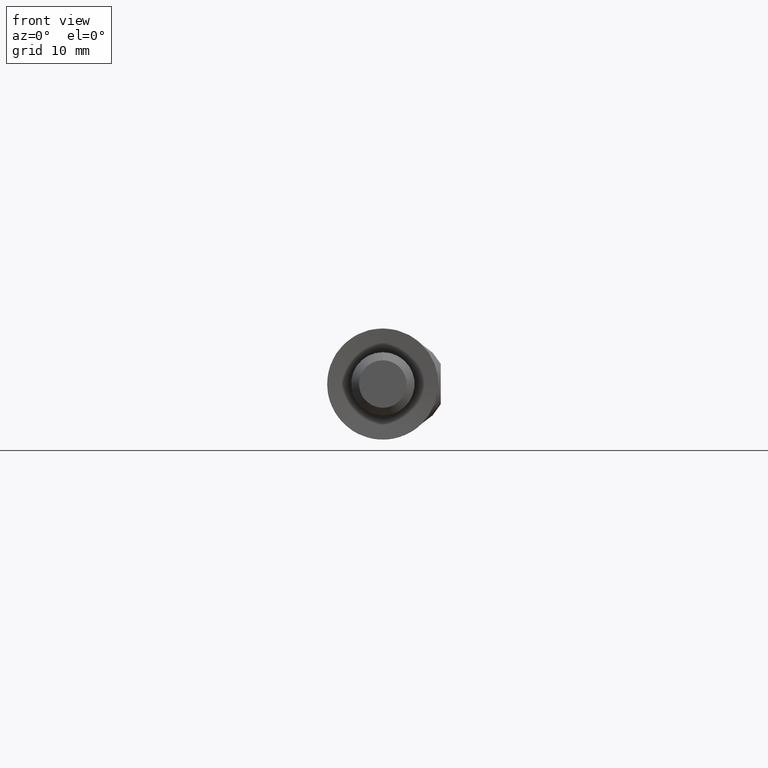
[diagram: clean part render]
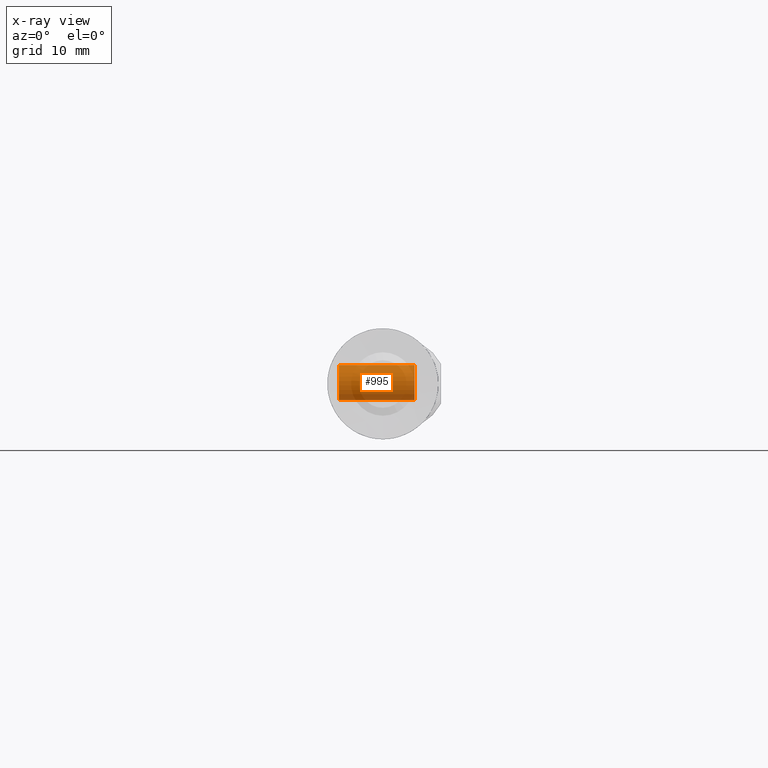
[diagram: x-ray — body ghosted, one internal face saturated and labeled with its STEP entity id]
A machine part, front view, then the same camera in x-ray: the body is ghosted and one INTERNAL B-rep face — a face not visible from any outside direction — is saturated and labeled: STEP entity #995.
In plain terms, the highlighted cylindrical surface (edge-blend (fillet) strip) has radius 2.3865 mm, axis along (1, 0, 0).
Its self-contained STEP definition (entity closure, byte-faithful):
#40 = CIRCLE ( 'NONE', #2144, 2.386499999999996700 ) ;
#127 = FACE_OUTER_BOUND ( 'NONE', #1281, .T. ) ;
#179 = DIRECTION ( 'NONE',  ( 0.0000000000000000000, -1.000000000000000000, 0.0000000000000000000 ) ) ;
#239 = EDGE_CURVE ( 'NONE', #1868, #779, #2212, .T. ) ;
#286 = DIRECTION ( 'NONE',  ( 0.0000000000000000000, -1.000000000000000000, 0.0000000000000000000 ) ) ;
#325 = EDGE_CURVE ( 'NONE', #1465, #1868, #2148, .T. ) ;
#707 = DIRECTION ( 'NONE',  ( 0.0000000000000000000, 0.0000000000000000000, -1.000000000000000000 ) ) ;
#779 = VERTEX_POINT ( 'NONE', #2522 ) ;
#835 = CARTESIAN_POINT ( 'NONE',  ( 0.0000000000000000000, 0.0000000000000000000, -2.386499999999998100 ) ) ;
#854 = DIRECTION ( 'NONE',  ( 0.0000000000000000000, -1.000000000000000000, 0.0000000000000000000 ) ) ;
#890 = EDGE_CURVE ( 'NONE', #1013, #779, #2738, .T. ) ;
#995 = ADVANCED_FACE ( 'NONE', ( #127 ), #2699, .T. ) ;
#1000 = VECTOR ( 'NONE', #1480, 1000.000000000000000 ) ;
#1013 = VERTEX_POINT ( 'NONE', #1055 ) ;
#1018 = DIRECTION ( 'NONE',  ( 0.0000000000000000000, 0.0000000000000000000, -1.000000000000000000 ) ) ;
#1055 = CARTESIAN_POINT ( 'NONE',  ( 0.0000000000000000000, 12.82269999999999900, -2.386499999999996700 ) ) ;
#1071 = DIRECTION ( 'NONE',  ( 0.0000000000000000000, 0.0000000000000000000, -1.000000000000000000 ) ) ;
#1087 = ORIENTED_EDGE ( 'NONE', *, *, #2412, .T. ) ;
#1281 = EDGE_LOOP ( 'NONE', ( #2728, #1087, #2417, #2613 ) ) ;
#1456 = CARTESIAN_POINT ( 'NONE',  ( 2.922619586165157400E-016, 3.300000000000000700, 2.386499999999999000 ) ) ;
#1465 = VERTEX_POINT ( 'NONE', #2575 ) ;
#1480 = DIRECTION ( 'NONE',  ( 0.0000000000000000000, -1.000000000000000000, 0.0000000000000000000 ) ) ;
#1560 = VECTOR ( 'NONE', #1617, 1000.000000000000000 ) ;
#1617 = DIRECTION ( 'NONE',  ( 0.0000000000000000000, -1.000000000000000000, 0.0000000000000000000 ) ) ;
#1672 = AXIS2_PLACEMENT_3D ( 'NONE', #2265, #286, #707 ) ;
#1807 = CARTESIAN_POINT ( 'NONE',  ( 2.922619586165156000E-016, 0.0000000000000000000, 2.386499999999998100 ) ) ;
#1868 = VERTEX_POINT ( 'NONE', #1456 ) ;
#2144 = AXIS2_PLACEMENT_3D ( 'NONE', #2547, #179, #1018 ) ;
#2148 = LINE ( 'NONE', #1807, #1560 ) ;
#2212 = CIRCLE ( 'NONE', #1672, 2.386499999999999000 ) ;
#2265 = CARTESIAN_POINT ( 'NONE',  ( 0.0000000000000000000, 3.300000000000000700, 0.0000000000000000000 ) ) ;
#2412 = EDGE_CURVE ( 'NONE', #1465, #1013, #40, .T. ) ;
#2417 = ORIENTED_EDGE ( 'NONE', *, *, #890, .T. ) ;
#2522 = CARTESIAN_POINT ( 'NONE',  ( 0.0000000000000000000, 3.300000000000000700, -2.386499999999999000 ) ) ;
#2546 = AXIS2_PLACEMENT_3D ( 'NONE', #2811, #854, #1071 ) ;
#2547 = CARTESIAN_POINT ( 'NONE',  ( 0.0000000000000000000, 12.82269999999999900, 0.0000000000000000000 ) ) ;
#2575 = CARTESIAN_POINT ( 'NONE',  ( 2.922619586165155500E-016, 12.82269999999999900, 2.386499999999996700 ) ) ;
#2613 = ORIENTED_EDGE ( 'NONE', *, *, #239, .F. ) ;
#2699 = CYLINDRICAL_SURFACE ( 'NONE', #2546, 2.386499999999998100 ) ;
#2728 = ORIENTED_EDGE ( 'NONE', *, *, #325, .F. ) ;
#2738 = LINE ( 'NONE', #835, #1000 ) ;
#2811 = CARTESIAN_POINT ( 'NONE',  ( 0.0000000000000000000, 0.0000000000000000000, 0.0000000000000000000 ) ) ;